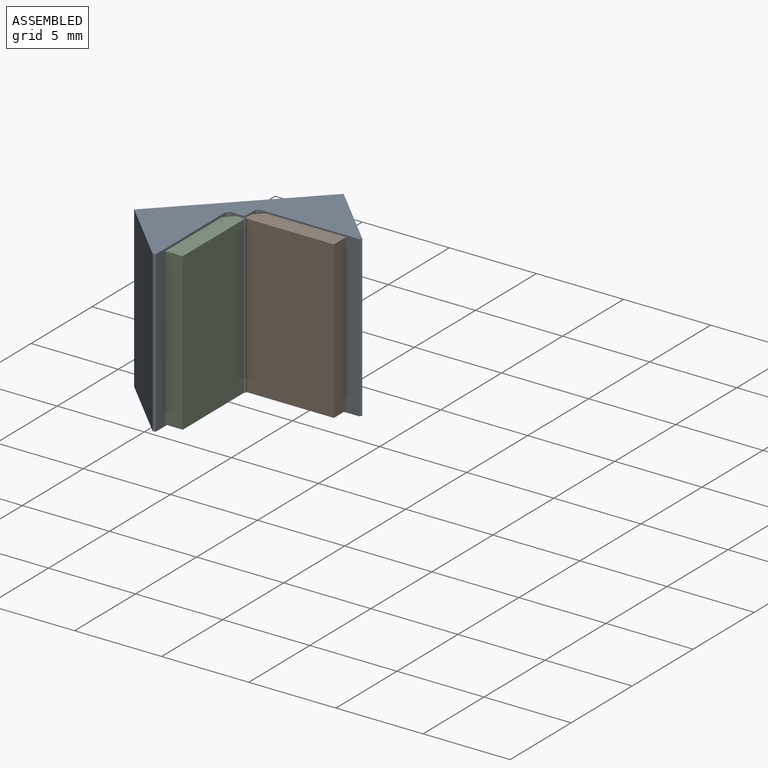
[diagram: assembled view]
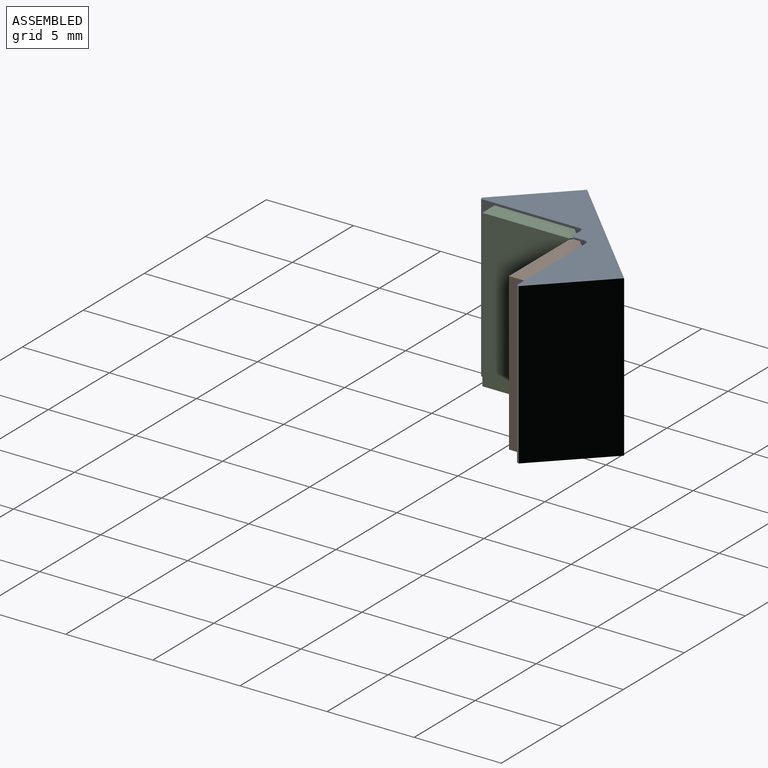
[diagram: assembled view, second angle]
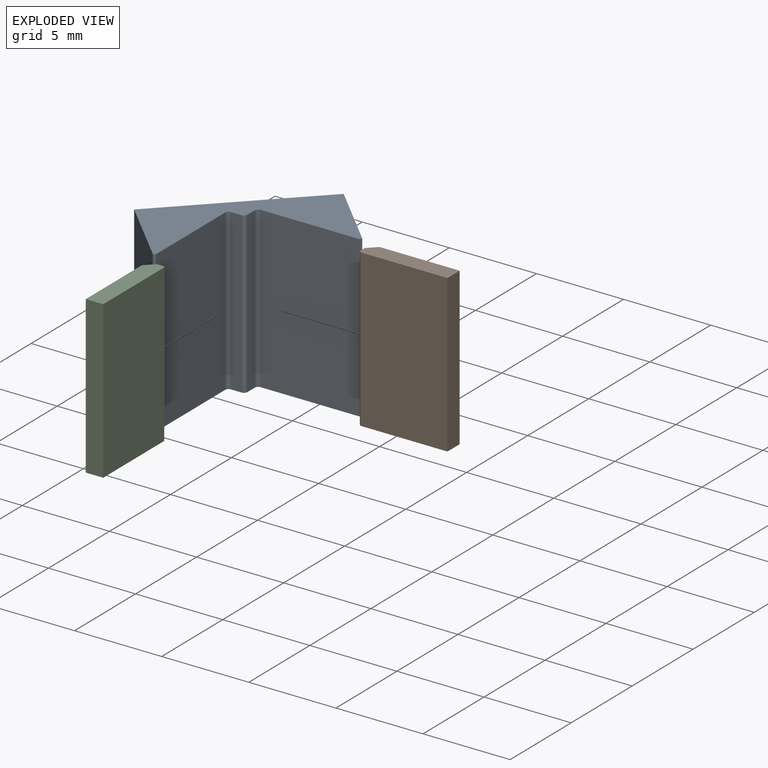
[diagram: exploded view]
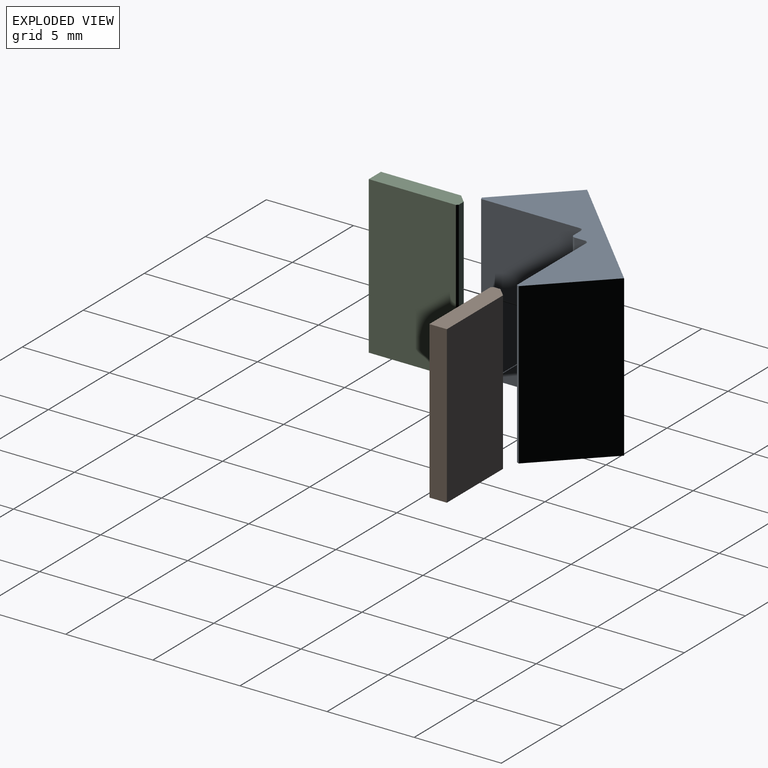
[diagram: exploded view, second angle]
ASSEMBLY  parts=3 mates=4
PART A: 14 faces, bbox 10x9.2x5.1 mm
  f0: plane 9.2x4.01mm, normal (0.71,0,0.71), area 52.2mm2, adj f7,f8,f9,f13
  f1: plane 9.2x5.03mm, normal (-1,0,0), area 46.3mm2, adj f2,f7,f8,f9
  f2: plane 10x9.2mm, normal (0,0,-1), area 92mm2, adj f1,f3,f7,f8
  f3: plane 9.2x5.03mm, normal (1,0,0), area 46.3mm2, adj f2,f7,f8,f10
  f4: plane 9.2x4.01mm, normal (-0.71,0,0.71), area 52.2mm2, adj f7,f8,f10,f11
  f5: plane 9.2x0.42mm, normal (0.71,0,0.71), area 5.5mm2, adj f7,f8,f11,f12
  f6: plane 9.2x0.42mm, normal (-0.71,0,0.71), area 5.5mm2, adj f7,f8,f12,f13
  f7: plane 10x5.09mm, normal (0,-1,0), area 28.3mm2, adj f0,f1,f2,f3,f4,f5,f6,f9
  f8: plane 10x5.09mm, normal (0,1,0), area 28.3mm2, adj f0,f1,f2,f3,f4,f5,f6,f9
  f9: plane 9.2x0.14mm, normal (-0.38,0,0.92), area 1.4mm2, adj f0,f1,f7,f8
  f10: plane 9.2x0.14mm, normal (0.38,0,0.92), area 1.4mm2, adj f3,f4,f7,f8
  f11: cylinder r=0.2mm len=9.2mm, axis (0,1,0), area 2.9mm2, adj f4,f5,f7,f8
  f12: cylinder r=0.2mm len=9.2mm, axis (0,-1,0), area 2.9mm2, adj f5,f6,f7,f8
  f13: cylinder r=0.2mm len=9.2mm, axis (0,1,0), area 2.9mm2, adj f0,f6,f7,f8
PART B: 8 faces, bbox 9x1x5.1 mm
  f0: plane 9x1mm, normal (0,0,1), area 9mm2, adj f1,f3,f4,f5
  f1: plane 5.1x1mm, normal (-1,0,0), area 5mm2, adj f0,f2,f4,f5,f6,f7
  f2: plane 9x0.4mm, normal (0,0,-1), area 3.6mm2, adj f1,f3,f6,f7
  f3: plane 5.1x1mm, normal (1,0,0), area 5mm2, adj f0,f2,f4,f5,f6,f7
  f4: plane 9x5mm, normal (0,-1,0), area 45mm2, adj f0,f1,f3,f7
  f5: plane 9x4.6mm, normal (0,1,0), area 41.4mm2, adj f0,f1,f3,f6
  f6: plane 9x0.5mm, normal (0,0.71,-0.71), area 6.4mm2, adj f1,f2,f3,f5
  f7: plane 9x0.1mm, normal (0,-0.71,-0.71), area 1.3mm2, adj f1,f2,f3,f4
PART C: same geometry as B
PLACE A rot(axis=(0.86,0.36,0.36),98.4deg) t=(-7.94,3.36,-7.36)mm
PLACE B rot(axis=(0,1,0),90deg) t=(-3.24,6.24,-2.86)mm
PLACE C rot(axis=(0.58,-0.58,0.58),120deg) t=(-3.74,5.74,-11.89)mm
MATE planar B.f2 <-> A.f5  axis (-1,0,0) through (-3.24,6.04,-7.36)mm
MATE planar C.f2 <-> A.f6  axis (0,1,0) through (-3.54,5.74,-7.39)mm
MATE planar C.f5 <-> A.f0  axis (-1,0,0) through (-4.24,2.94,-7.39)mm
MATE planar B.f5 <-> A.f4  axis (0,1,0) through (-0.44,6.74,-7.36)mm
